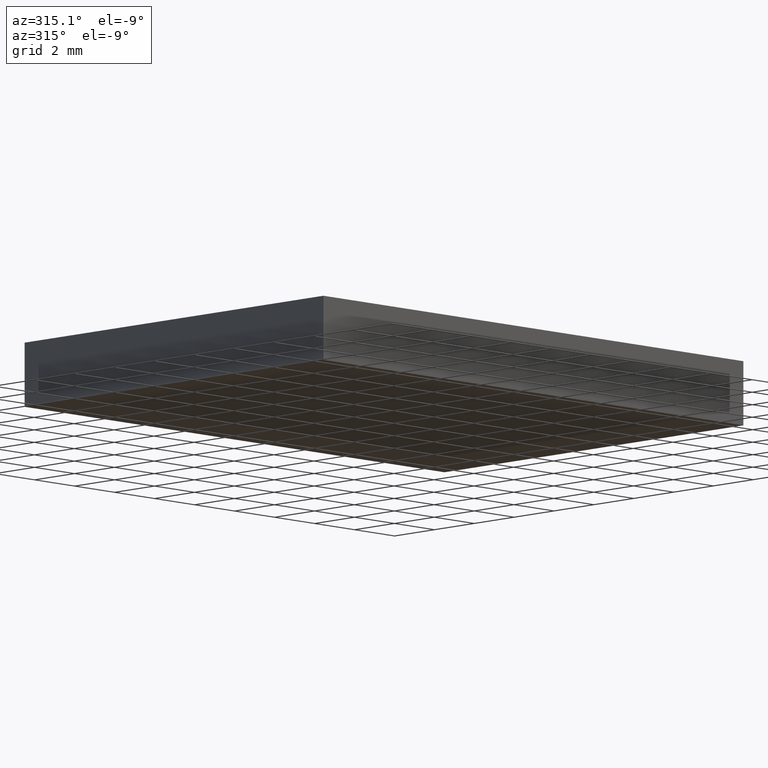
[diagram: clean part render]
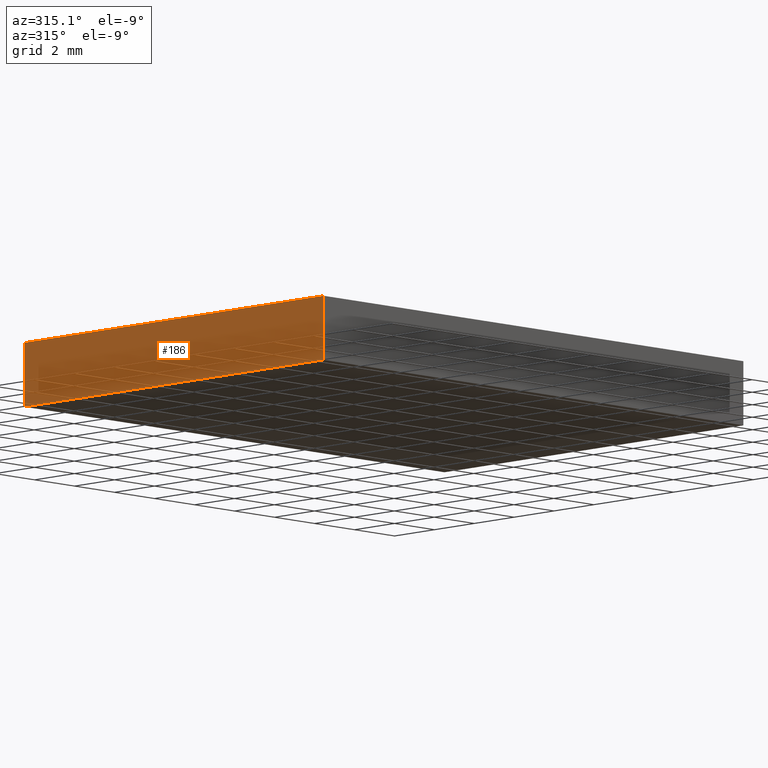
[diagram: same view with one face highlighted and labeled with its STEP entity id]
A machine part, auxiliary view. The second image highlights one B-rep face of the part: STEP entity #186.
In plain terms, the highlighted planar face has unit normal (1, 0, -0).
Its self-contained STEP definition (entity closure, byte-faithful):
#7 = ORIENTED_EDGE ( 'NONE', *, *, #115, .T. ) ;
#19 = DIRECTION ( 'NONE',  ( -4.625929269271485900E-016, 1.000000000000000000, 0.0000000000000000000 ) ) ;
#20 = CARTESIAN_POINT ( 'NONE',  ( 43.80749197114183600, 38.28162091726329700, 2.299999999999999800 ) ) ;
#24 = EDGE_CURVE ( 'NONE', #86, #195, #114, .T. ) ;
#31 = VECTOR ( 'NONE', #170, 1000.000000000000000 ) ;
#35 = AXIS2_PLACEMENT_3D ( 'NONE', #20, #104, #19 ) ;
#37 = VERTEX_POINT ( 'NONE', #100 ) ;
#39 = DIRECTION ( 'NONE',  ( -0.0000000000000000000, -0.0000000000000000000, -1.000000000000000000 ) ) ;
#49 = CARTESIAN_POINT ( 'NONE',  ( 43.80749197114184300, 23.28162091726329700, 2.299999999999999800 ) ) ;
#56 = CARTESIAN_POINT ( 'NONE',  ( 43.80749197114183600, 38.28162091726329700, 2.299999999999999800 ) ) ;
#60 = LINE ( 'NONE', #68, #152 ) ;
#68 = CARTESIAN_POINT ( 'NONE',  ( 43.80749197114183600, 38.28162091726329700, 0.0000000000000000000 ) ) ;
#71 = CARTESIAN_POINT ( 'NONE',  ( 43.80749197114184300, 23.28162091726329700, 0.0000000000000000000 ) ) ;
#76 = LINE ( 'NONE', #56, #31 ) ;
#78 = VERTEX_POINT ( 'NONE', #132 ) ;
#82 = VECTOR ( 'NONE', #154, 1000.000000000000000 ) ;
#86 = VERTEX_POINT ( 'NONE', #49 ) ;
#87 = CARTESIAN_POINT ( 'NONE',  ( 43.80749197114184300, 23.28162091726329700, 2.299999999999999800 ) ) ;
#89 = PLANE ( 'NONE',  #35 ) ;
#95 = VECTOR ( 'NONE', #39, 1000.000000000000000 ) ;
#100 = CARTESIAN_POINT ( 'NONE',  ( 43.80749197114183600, 38.28162091726329700, 2.299999999999999800 ) ) ;
#104 = DIRECTION ( 'NONE',  ( 1.000000000000000000, 4.625929269271485900E-016, -0.0000000000000000000 ) ) ;
#107 = CARTESIAN_POINT ( 'NONE',  ( 43.80749197114183600, 38.28162091726329700, 2.299999999999999800 ) ) ;
#111 = ORIENTED_EDGE ( 'NONE', *, *, #24, .F. ) ;
#114 = LINE ( 'NONE', #87, #82 ) ;
#115 = EDGE_CURVE ( 'NONE', #78, #195, #60, .T. ) ;
#123 = EDGE_LOOP ( 'NONE', ( #7, #111, #182, #202 ) ) ;
#131 = LINE ( 'NONE', #107, #95 ) ;
#132 = CARTESIAN_POINT ( 'NONE',  ( 43.80749197114183600, 38.28162091726329700, 0.0000000000000000000 ) ) ;
#147 = FACE_OUTER_BOUND ( 'NONE', #123, .T. ) ;
#152 = VECTOR ( 'NONE', #169, 1000.000000000000000 ) ;
#154 = DIRECTION ( 'NONE',  ( -0.0000000000000000000, -0.0000000000000000000, -1.000000000000000000 ) ) ;
#169 = DIRECTION ( 'NONE',  ( 4.625929269271485900E-016, -1.000000000000000000, 0.0000000000000000000 ) ) ;
#170 = DIRECTION ( 'NONE',  ( 4.625929269271485900E-016, -1.000000000000000000, 0.0000000000000000000 ) ) ;
#173 = EDGE_CURVE ( 'NONE', #37, #78, #131, .T. ) ;
#182 = ORIENTED_EDGE ( 'NONE', *, *, #190, .F. ) ;
#186 = ADVANCED_FACE ( 'NONE', ( #147 ), #89, .F. ) ;
#190 = EDGE_CURVE ( 'NONE', #37, #86, #76, .T. ) ;
#195 = VERTEX_POINT ( 'NONE', #71 ) ;
#202 = ORIENTED_EDGE ( 'NONE', *, *, #173, .T. ) ;